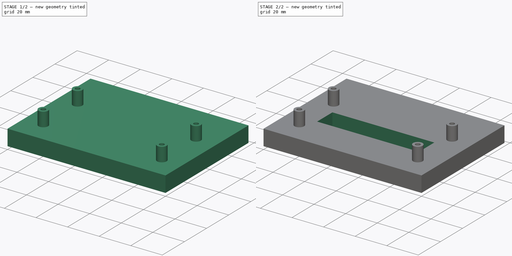
[diagram: build sequence overview — one tinted view per stage of 2, left to right]
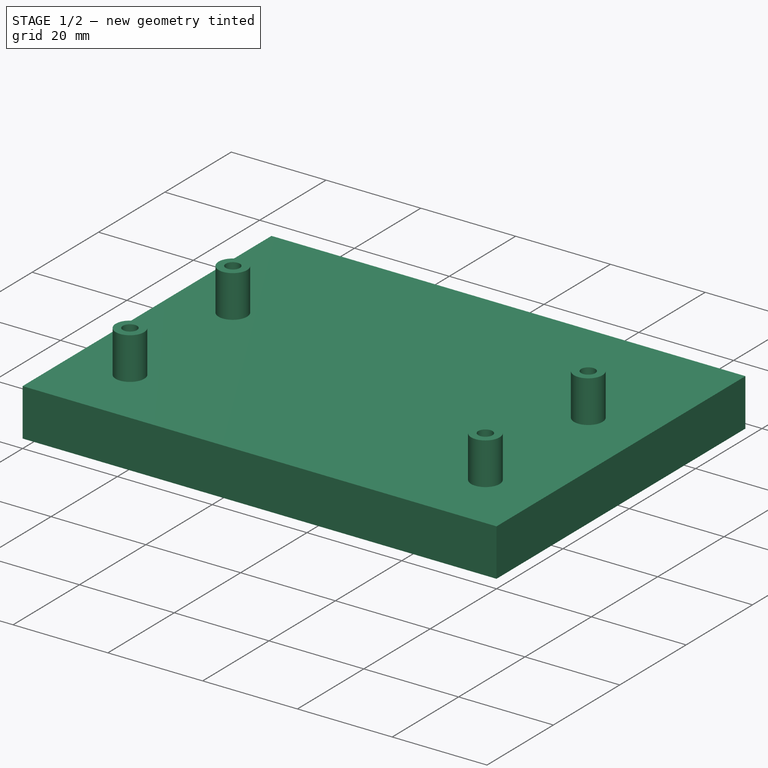
[diagram: stage 1 of 2 — iso view after this stage's code; geometry added in this stage tinted green]
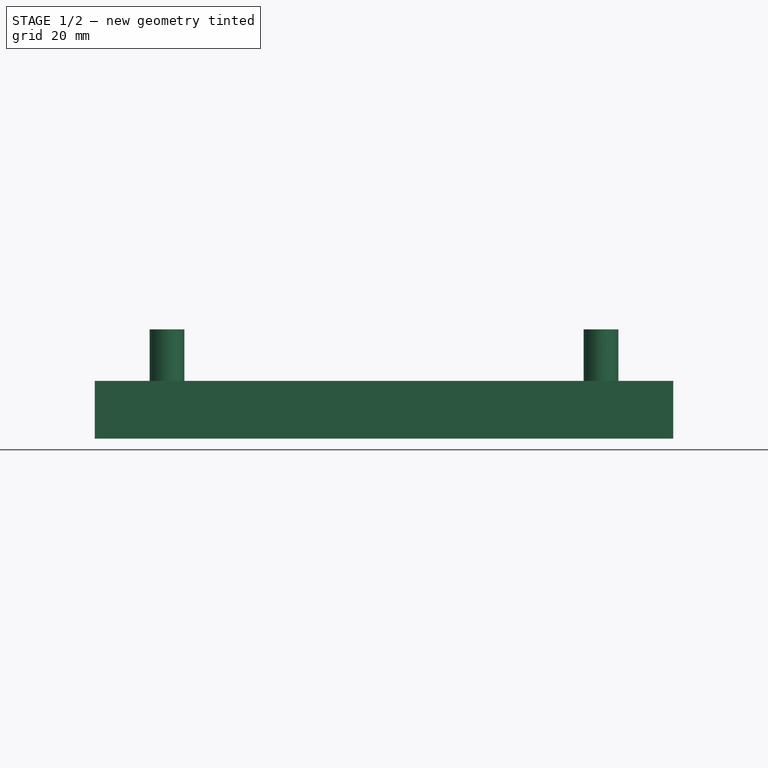
[diagram: stage 1 of 2 — front view after this stage's code; geometry added in this stage tinted green]
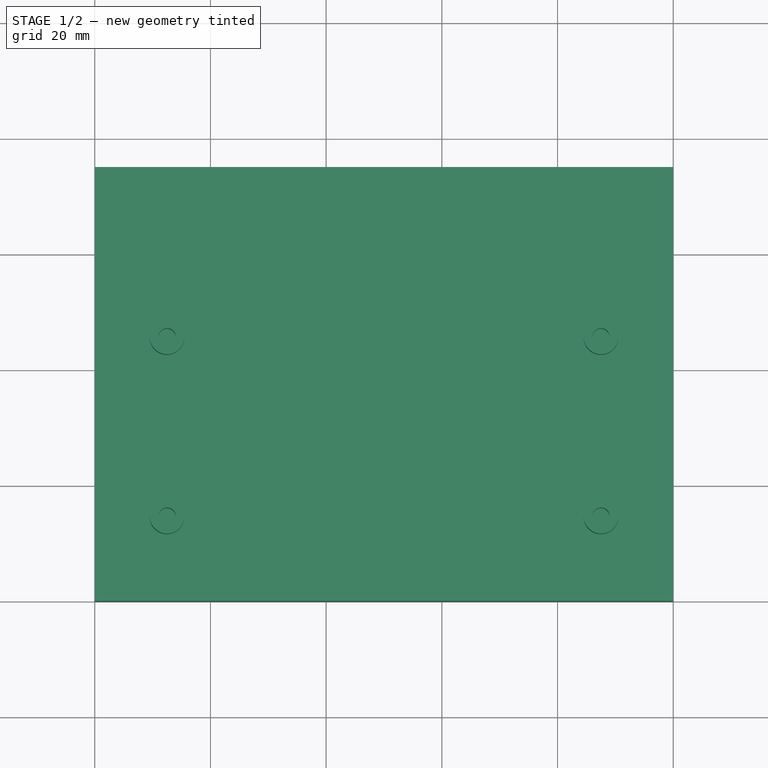
[diagram: stage 1 of 2 — top view after this stage's code; geometry added in this stage tinted green]
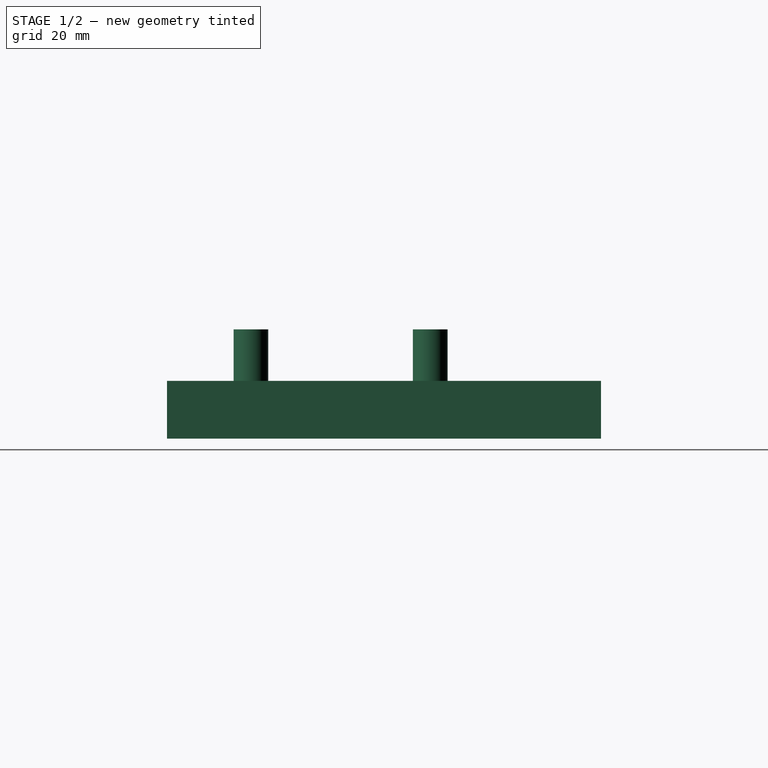
[diagram: stage 1 of 2 — right view after this stage's code; geometry added in this stage tinted green]
FCSTD DOCUMENT
Label: 16x2LCDMount
objects: Sketcher::SketchObject×3, PartDesign::Pad×2, PartDesign::Pocket×1, App::DocumentObjectGroup×1
note: 8 computed .brp shape members not serialized (recipe doc carries the construction recipe); baked Part::Feature solids carry a one-line shape summary decoded from their .brp

FEATURE [Sketcher::SketchObject] Sketch
  sketch-geometry (4):
    g0: LineSegment StartX=0 StartY=0 StartZ=0 EndX=100 EndY=0 EndZ=0
    g1: LineSegment StartX=100 StartY=0 StartZ=0 EndX=100 EndY=75 EndZ=0
    g2: LineSegment StartX=100 StartY=75 StartZ=0 EndX=0 EndY=75 EndZ=0
    g3: LineSegment StartX=0 StartY=75 StartZ=0 EndX=0 EndY=0 EndZ=0
  constraints (12):
    c: Coincident(g0,g1)
    c: Coincident(g1,g2)
    c: Coincident(g2,g3)
    c: Coincident(g3,g0)
    c: Horizontal(g0)
    c: Horizontal(g2)
    c: Vertical(g1)
    c: Vertical(g3)
    c: DistanceX(g2) = -100
    c: DistanceY(g3) = -75
    c: DistanceX(g0) = 0
    c: DistanceY(g0) = 0
FEATURE [PartDesign::Pad] Pad
  Length = 10
  MirroredExtent = false
  Sketch = -> Sketch
FEATURE [Sketcher::SketchObject] Sketch001  label="Screw Post"
  Placement = pos=(0,0,10) rot=(0,0,1;0rad)
  Support = -> Pad [Face6]
  sketch-geometry (16):
    g0: Circle CenterX=12.5 CenterY=14.5 CenterZ=0 NormalX=0 NormalY=0 NormalZ=1 Radius=3
    g1: Circle CenterX=12.5 CenterY=45.5 CenterZ=0 NormalX=0 NormalY=0 NormalZ=1 Radius=3
    g2: Circle CenterX=87.5 CenterY=45.5 CenterZ=0 NormalX=0 NormalY=0 NormalZ=1 Radius=3
    g3: Circle CenterX=87.5 CenterY=14.5 CenterZ=0 NormalX=0 NormalY=0 NormalZ=1 Radius=3
    g4: LineSegment [constr] StartX=12.5 StartY=45.5 StartZ=0 EndX=87.5 EndY=45.5 EndZ=0
    g5: LineSegment [constr] StartX=12.5 StartY=14.5 StartZ=0 EndX=50 EndY=14.5 EndZ=0
    g6: LineSegment [constr] StartX=50 StartY=14.5 StartZ=0 EndX=87.5 EndY=14.5 EndZ=0
    g7: LineSegment [constr] StartX=87.5 StartY=45.5 StartZ=0 EndX=87.5 EndY=14.5 EndZ=0
    g8: Circle CenterX=12.5 CenterY=45.5 CenterZ=0 NormalX=0 NormalY=0 NormalZ=1 Radius=1.5
    g9: Circle CenterX=87.5 CenterY=45.5 CenterZ=0 NormalX=0 NormalY=0 NormalZ=1 Radius=1.5
    g10: Circle CenterX=87.5 CenterY=14.5 CenterZ=0 NormalX=0 NormalY=0 NormalZ=1 Radius=1.5
    g11: Circle CenterX=12.5 CenterY=14.5 CenterZ=0 NormalX=0 NormalY=0 NormalZ=1 Radius=1.5
    g12: LineSegment [constr] StartX=12.5 StartY=45.5 StartZ=0 EndX=12.5 EndY=30 EndZ=0
    g13: LineSegment [constr] StartX=12.5 StartY=30 StartZ=0 EndX=12.5 EndY=14.5 EndZ=0
    g14: LineSegment [constr] StartX=12.5 StartY=30 StartZ=0 EndX=50 EndY=30 EndZ=0
    g15: LineSegment [constr] StartX=50 StartY=30 StartZ=0 EndX=50 EndY=14.5 EndZ=0
  constraints (39):
    c: Radius(g1) = 3
    c: Equal(g1,g2)
    c: Equal(g1,g0)
    c: Equal(g3,g1)
    c: Horizontal(g4)
    c: Coincident(g4,g2)
    c: Coincident(g4,g1)
    c: Horizontal(g5)
    c: Coincident(g5,g6)
    c: Horizontal(g6)
    c: Equal(g6,g5)
    c: Coincident(g5,g0)
    c: Coincident(g6,g3)
    c: Vertical(g7)
    c: Coincident(g2,g7)
    c: Coincident(g3,g7)
    c: DistanceX(g0,g3) = 75
    c: DistanceY(g1,g0) = -31
    c: Radius(g8) = 1.5
    c: Coincident(g8,g1)
    c: Equal(g11,g8)
    c: Equal(g8,g9)
    c: Equal(g8,g10)
    c: Coincident(g11,g0)
    c: Coincident(g10,g3)
    c: Coincident(g9,g2)
    c: Vertical(g12)
    c: Coincident(g12,g13)
    c: Vertical(g13)
    c: Equal(g12,g13)
    c: Coincident(g13,g0)
    c: Coincident(g1,g12)
    c: Horizontal(g14)
    c: Coincident(g14,g15)
    c: Vertical(g15)
    c: Coincident(g15,g5)
    c: Coincident(g14,g12)
    c: DistanceX(g14) = 50
    c: DistanceY(g14) = 30
FEATURE [PartDesign::Pad] Pad001
  Length = 8.9
  MirroredExtent = false
  Sketch = -> Sketch001
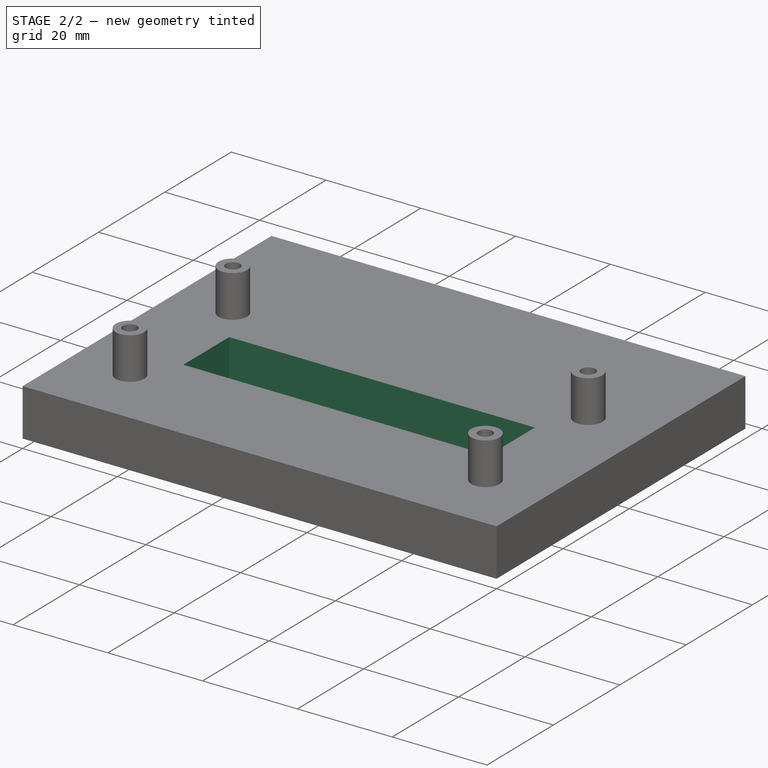
[diagram: stage 2 of 2 — iso view after this stage's code; geometry added in this stage tinted green]
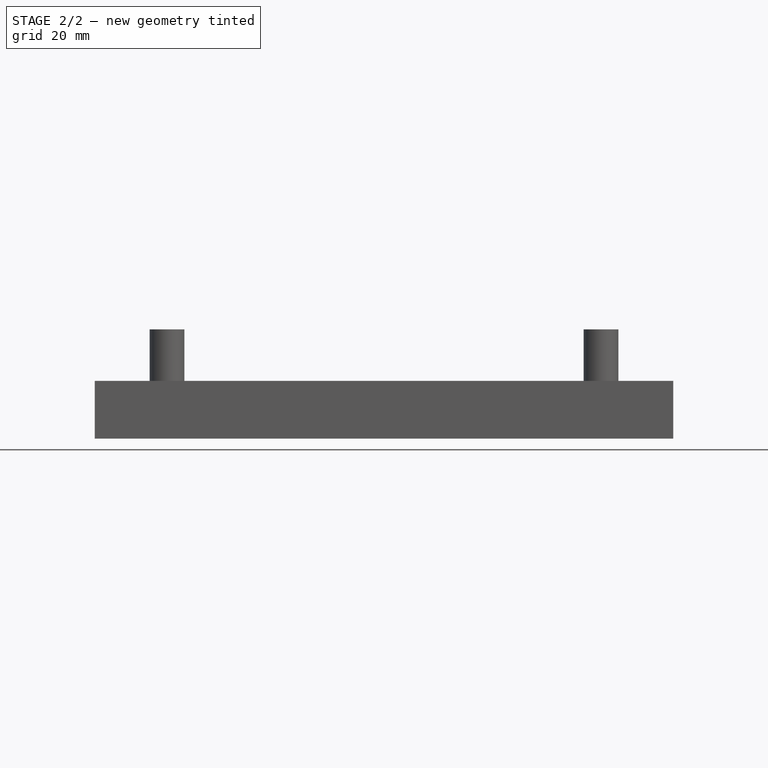
[diagram: stage 2 of 2 — front view after this stage's code; geometry added in this stage tinted green]
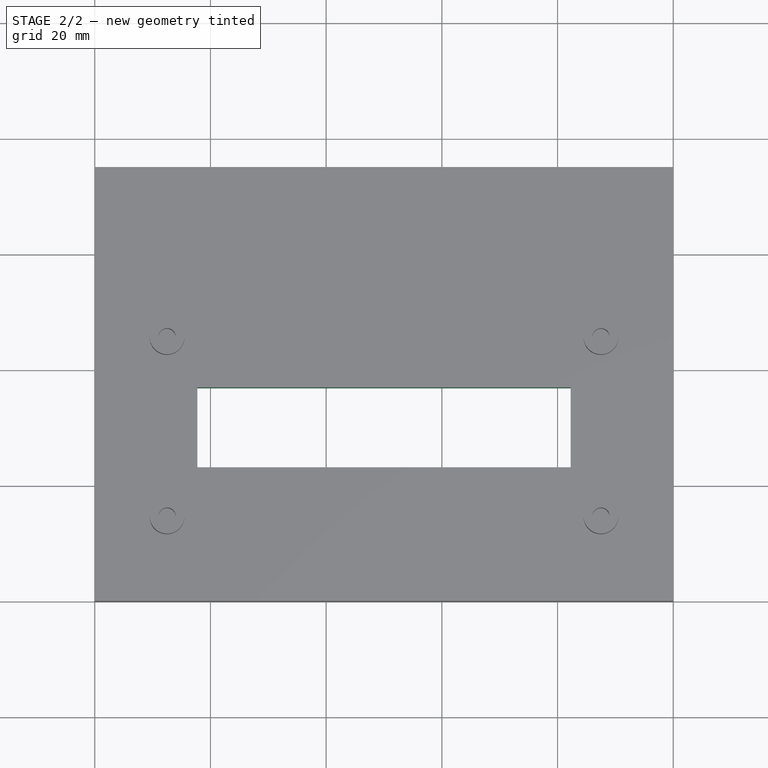
[diagram: stage 2 of 2 — top view after this stage's code; geometry added in this stage tinted green]
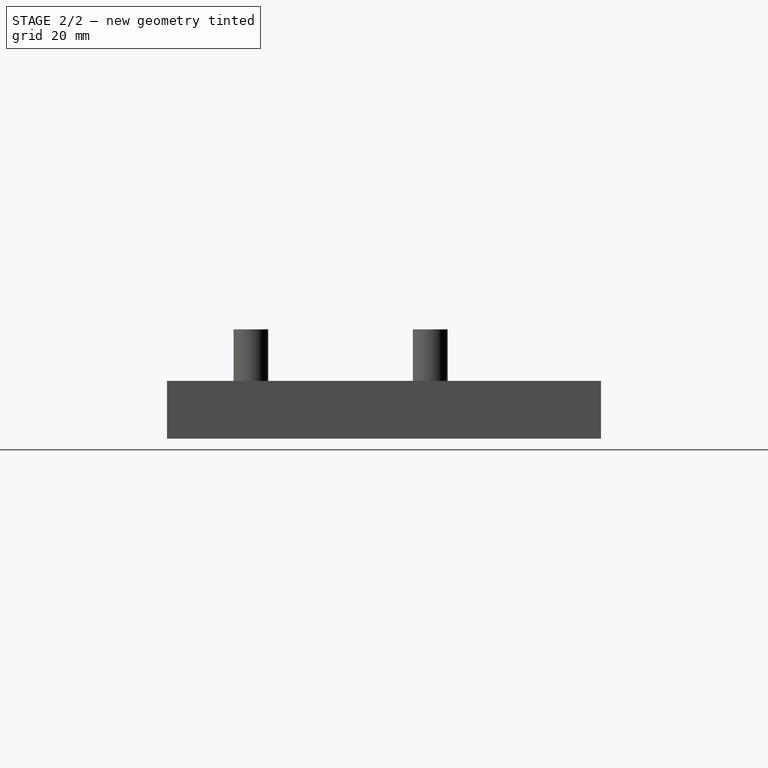
[diagram: stage 2 of 2 — right view after this stage's code; geometry added in this stage tinted green]
FEATURE [Sketcher::SketchObject] Sketch002  label="LCD Window"
  Placement = pos=(0,0,10) rot=(0,0,1;0rad)
  Support = -> Pad001 [Face5]
  sketch-geometry (8):
    g0: LineSegment StartX=82.25 StartY=23.1 StartZ=0 EndX=82.25 EndY=36.9 EndZ=0
    g1: LineSegment StartX=82.25 StartY=36.9 StartZ=0 EndX=17.75 EndY=36.9 EndZ=0
    g2: LineSegment StartX=17.75 StartY=36.9 StartZ=0 EndX=17.75 EndY=30 EndZ=0
    g3: LineSegment StartX=17.75 StartY=30 StartZ=0 EndX=17.75 EndY=23.1 EndZ=0
    g4: LineSegment StartX=17.75 StartY=23.1 StartZ=0 EndX=50 EndY=23.1 EndZ=0
    g5: LineSegment StartX=50 StartY=23.1 StartZ=0 EndX=82.25 EndY=23.1 EndZ=0
    g6: LineSegment [constr] StartX=17.75 StartY=30 StartZ=0 EndX=50 EndY=30 EndZ=0
    g7: LineSegment [constr] StartX=50 StartY=30 StartZ=0 EndX=50 EndY=23.1 EndZ=0
  constraints (23):
    c: Coincident(g0,g1)
    c: Horizontal(g1)
    c: Vertical(g0)
    c: Vertical(g2)
    c: Coincident(g2,g3)
    c: Vertical(g3)
    c: Coincident(g3,g4)
    c: Horizontal(g4)
    c: Coincident(g4,g5)
    c: Horizontal(g5)
    c: Equal(g2,g3)
    c: Equal(g4,g5)
    c: Coincident(g2,g1)
    c: Coincident(g5,g0)
    c: Horizontal(g6)
    c: Coincident(g6,g7)
    c: Vertical(g7)
    c: Coincident(g6,g2)
    c: Coincident(g7,g4)
    c: DistanceX(g3,g0) = 64.5
    c: DistanceY(g1,g3) = -13.8
    c: DistanceX(g6) = 50
    c: DistanceY(g6) = 30
FEATURE [PartDesign::Pocket] Pocket
  Length = 10
  Sketch = -> Sketch002
  Type = 0
FEATURE [App::DocumentObjectGroup] Group
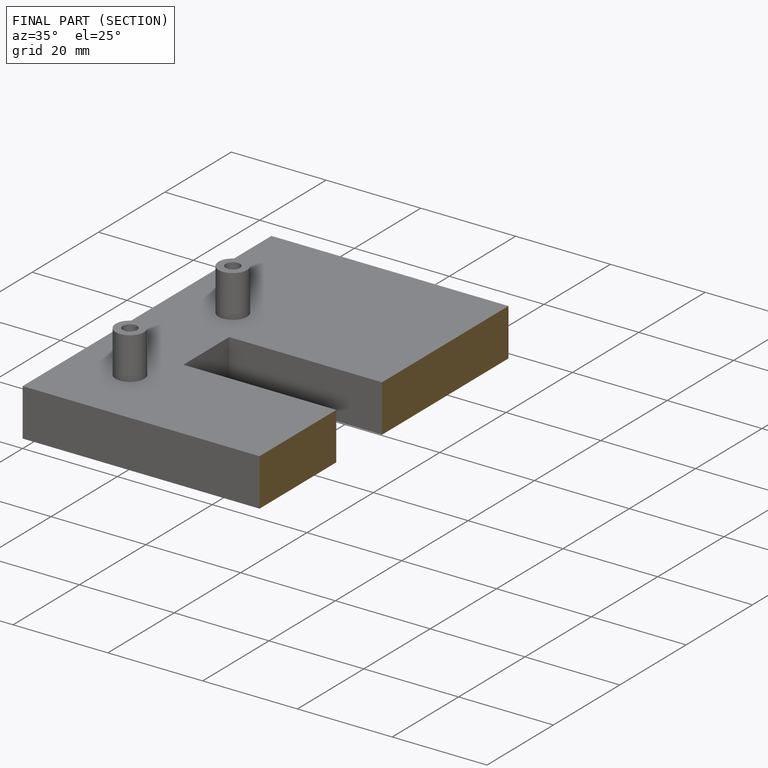
[diagram: finished part — half-section view (interior)]
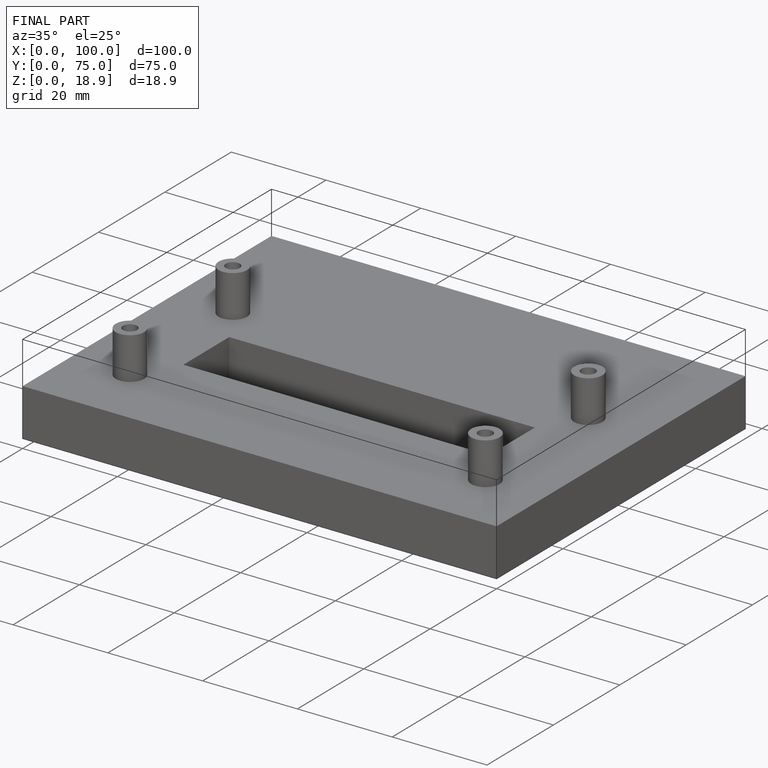
[diagram: finished part — iso view with bounding-box wireframe]
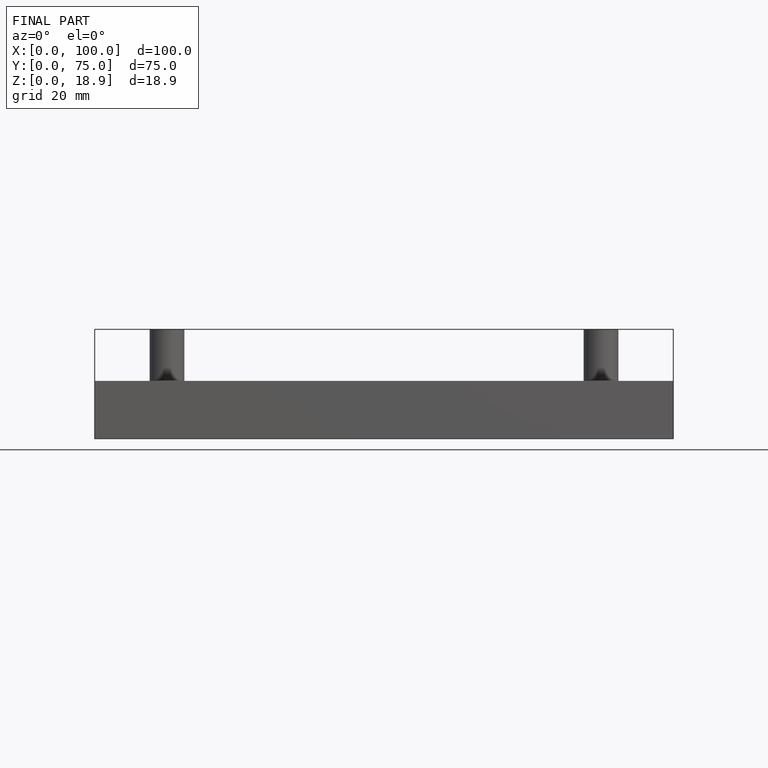
[diagram: finished part — front view with bounding-box wireframe]
